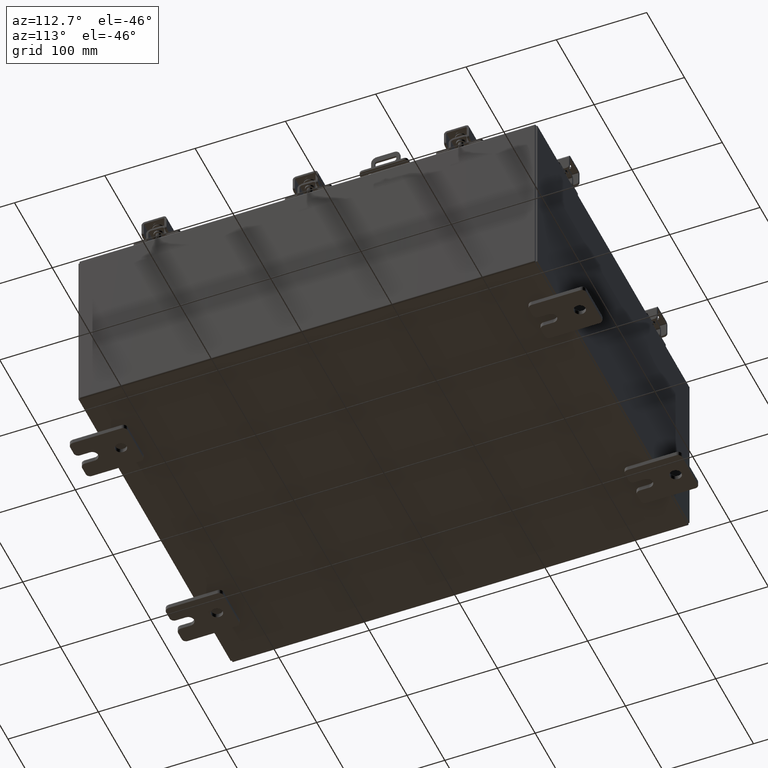
[diagram: clean part render]
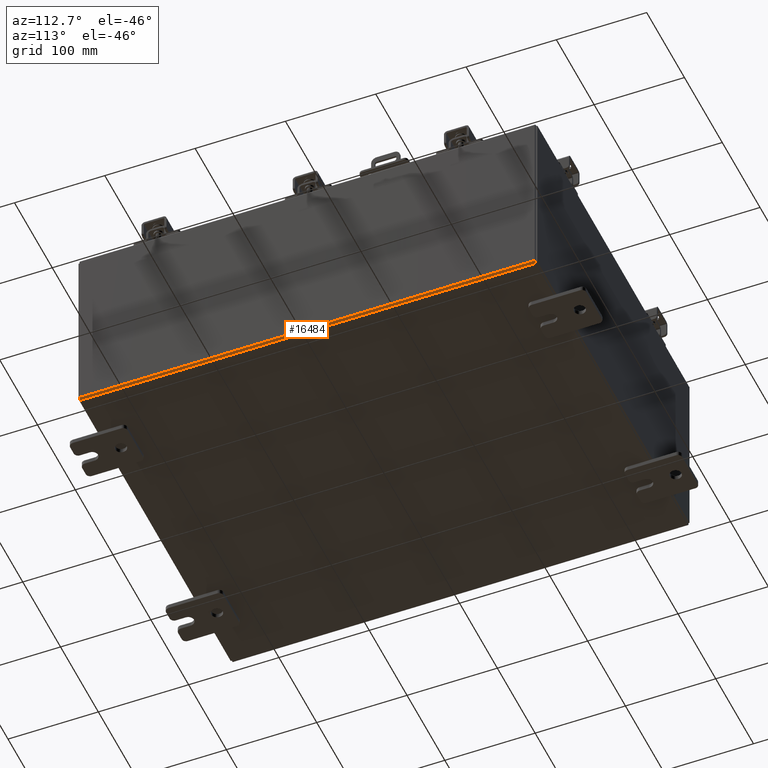
[diagram: same view with one face highlighted and labeled with its STEP entity id]
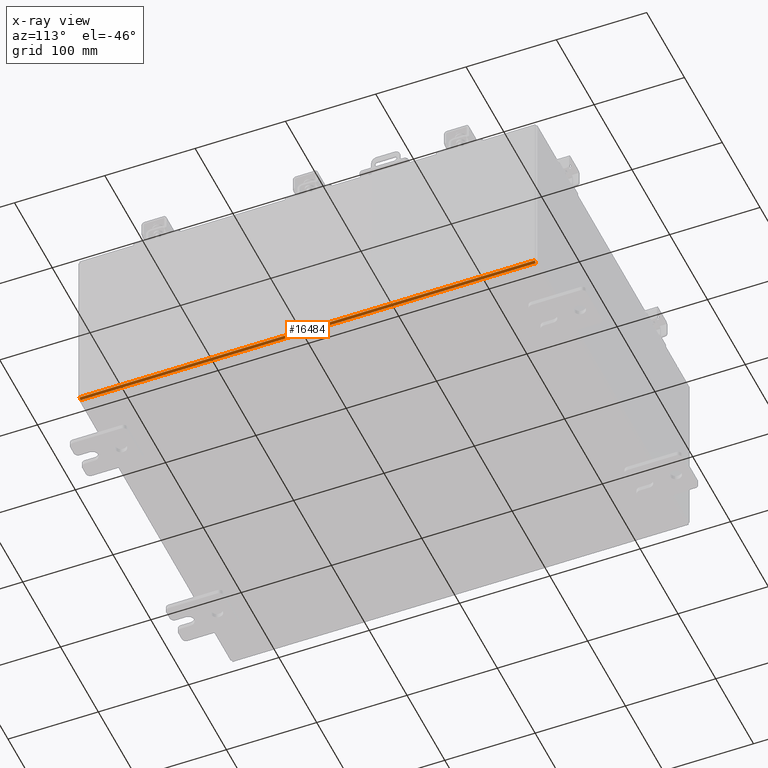
[diagram: x-ray of the same camera — body ghosted, the highlighted face saturated]
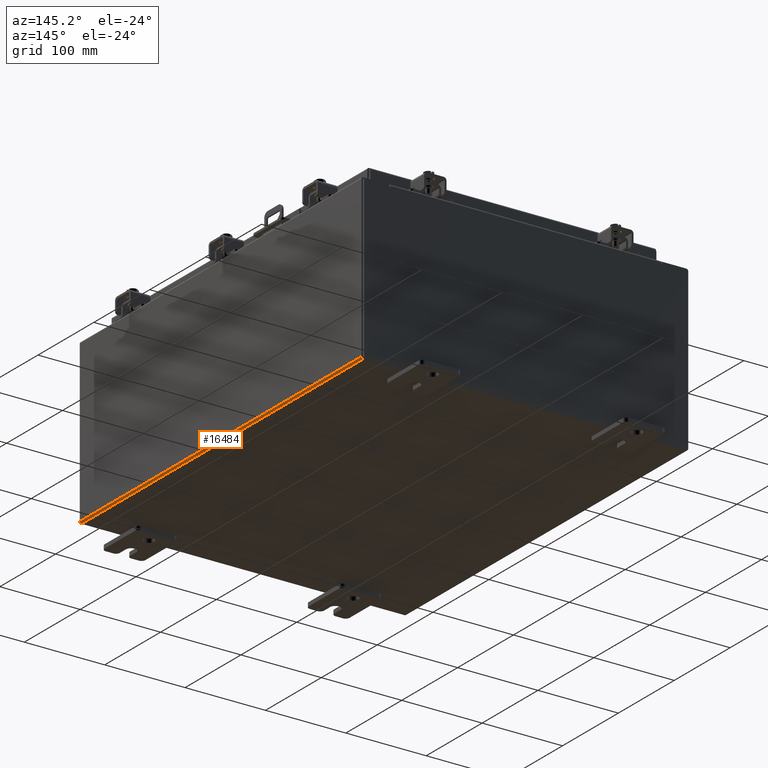
[diagram: same view with one face highlighted and labeled with its STEP entity id]
A machine part, auxiliary view. The second image highlights one B-rep face of the part: STEP entity #16484.
The next image is the same camera in x-ray: the body ghosted, the highlighted face saturated — about 0% of this face is hidden behind the body in this view.
A second angle (auxiliary view) of the same face is appended — the face is thin or edge-on in the first view.
In plain terms, the highlighted cylindrical surface (edge-blend (fillet) strip) has radius 2.2276 mm, axis along (0, 1, 0).
Its self-contained STEP definition (entity closure, byte-faithful):
#863 = AXIS2_PLACEMENT_3D ( 'NONE', #2571, #14739, #4335 ) ;
#1348 = CARTESIAN_POINT ( 'NONE',  ( 8.000000000000001800, -9.925300000000001800, 0.01299999999999984800 ) ) ;
#1490 = CARTESIAN_POINT ( 'NONE',  ( 8.000000000000001800, -9.925300000000001800, 0.01299999999999984700 ) ) ;
#1803 = VERTEX_POINT ( 'NONE', #15406 ) ;
#2422 = CIRCLE ( 'NONE', #863, 0.08770000000000009700 ) ;
#2571 = CARTESIAN_POINT ( 'NONE',  ( 7.912300000000001900, 9.925299999999996500, 0.01300000000000015200 ) ) ;
#2750 = EDGE_CURVE ( 'NONE', #1803, #11904, #2422, .T. ) ;
#3258 = DIRECTION ( 'NONE',  ( -0.0000000000000000000, -1.000000000000000000, -0.0000000000000000000 ) ) ;
#4267 = VECTOR ( 'NONE', #18626, 39.37007874015748100 ) ;
#4335 = DIRECTION ( 'NONE',  ( 0.0000000000000000000, 0.0000000000000000000, 1.000000000000000000 ) ) ;
#5420 = CYLINDRICAL_SURFACE ( 'NONE', #11554, 0.08770000000000026400 ) ;
#5528 = ORIENTED_EDGE ( 'NONE', *, *, #2750, .F. ) ;
#6492 = ORIENTED_EDGE ( 'NONE', *, *, #12562, .T. ) ;
#7647 = AXIS2_PLACEMENT_3D ( 'NONE', #7730, #19890, #9464 ) ;
#7730 = CARTESIAN_POINT ( 'NONE',  ( 7.912300000000001900, -9.925300000000001800, 0.01300000000000015200 ) ) ;
#7997 = EDGE_LOOP ( 'NONE', ( #11023, #5528, #6492, #10842 ) ) ;
#8276 = CARTESIAN_POINT ( 'NONE',  ( 7.912300000000001900, 9.925299999999998200, 0.01300000000000015200 ) ) ;
#9464 = DIRECTION ( 'NONE',  ( 0.0000000000000000000, 0.0000000000000000000, 1.000000000000000000 ) ) ;
#9935 = CIRCLE ( 'NONE', #7647, 0.08770000000000009700 ) ;
#10842 = ORIENTED_EDGE ( 'NONE', *, *, #11209, .F. ) ;
#11023 = ORIENTED_EDGE ( 'NONE', *, *, #19198, .F. ) ;
#11209 = EDGE_CURVE ( 'NONE', #14390, #12538, #9935, .T. ) ;
#11554 = AXIS2_PLACEMENT_3D ( 'NONE', #8276, #15156, #16914 ) ;
#11904 = VERTEX_POINT ( 'NONE', #12915 ) ;
#12538 = VERTEX_POINT ( 'NONE', #1348 ) ;
#12562 = EDGE_CURVE ( 'NONE', #1803, #12538, #12912, .T. ) ;
#12912 = LINE ( 'NONE', #1490, #21609 ) ;
#12915 = CARTESIAN_POINT ( 'NONE',  ( 7.912300000000001900, 9.925299999999996500, -0.07469999999999994700 ) ) ;
#14390 = VERTEX_POINT ( 'NONE', #17813 ) ;
#14739 = DIRECTION ( 'NONE',  ( 0.0000000000000000000, 1.000000000000000000, 0.0000000000000000000 ) ) ;
#15156 = DIRECTION ( 'NONE',  ( 0.0000000000000000000, 1.000000000000000000, 0.0000000000000000000 ) ) ;
#15406 = CARTESIAN_POINT ( 'NONE',  ( 8.000000000000001800, 9.925299999999996500, 0.01299999999999984700 ) ) ;
#16484 = ADVANCED_FACE ( 'NONE', ( #19289 ), #5420, .T. ) ;
#16899 = CARTESIAN_POINT ( 'NONE',  ( 7.912300000000001900, 9.925299999999998200, -0.07469999999999994700 ) ) ;
#16914 = DIRECTION ( 'NONE',  ( 1.000000000000000000, 0.0000000000000000000, -3.455694262224952200E-015 ) ) ;
#17607 = LINE ( 'NONE', #16899, #4267 ) ;
#17813 = CARTESIAN_POINT ( 'NONE',  ( 7.912300000000001900, -9.925300000000001800, -0.07470000000000000300 ) ) ;
#18626 = DIRECTION ( 'NONE',  ( -0.0000000000000000000, -1.000000000000000000, -0.0000000000000000000 ) ) ;
#19198 = EDGE_CURVE ( 'NONE', #11904, #14390, #17607, .T. ) ;
#19289 = FACE_OUTER_BOUND ( 'NONE', #7997, .T. ) ;
#19890 = DIRECTION ( 'NONE',  ( -0.0000000000000000000, -1.000000000000000000, -0.0000000000000000000 ) ) ;
#21609 = VECTOR ( 'NONE', #3258, 39.37007874015748100 ) ;